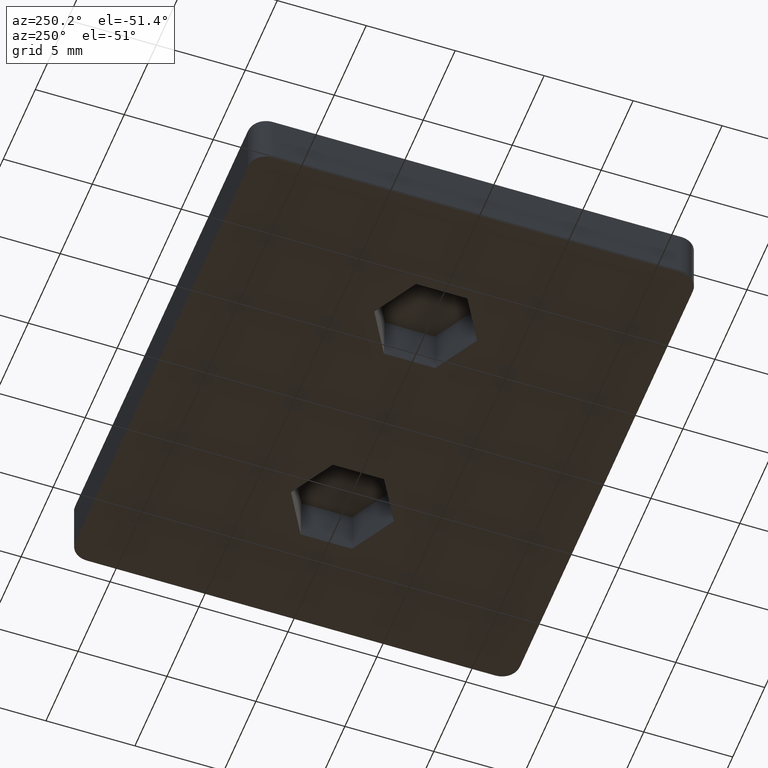
[diagram: clean part render]
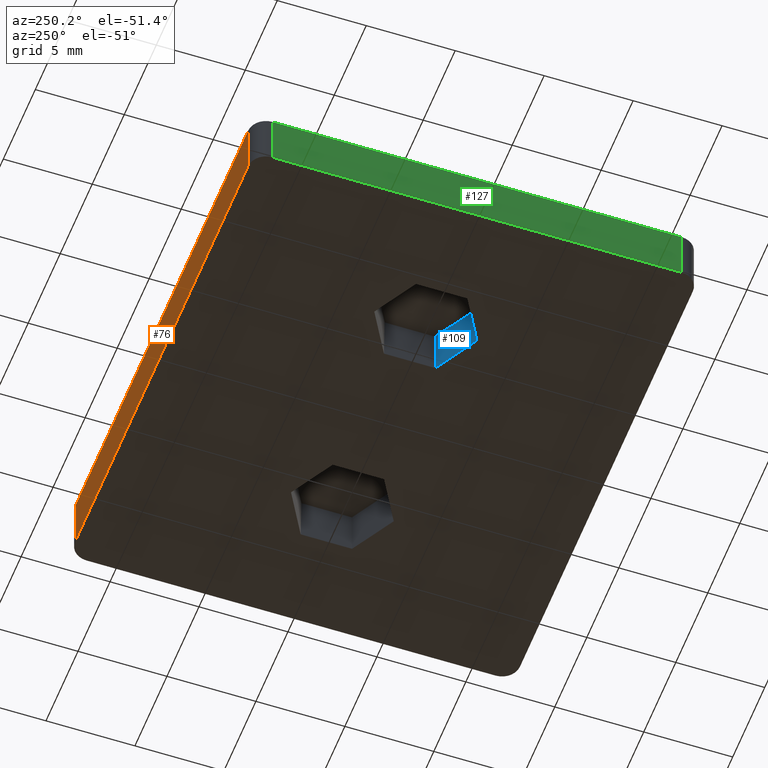
[diagram: same view with three faces highlighted in distinct colors, each labeled with its STEP entity id]
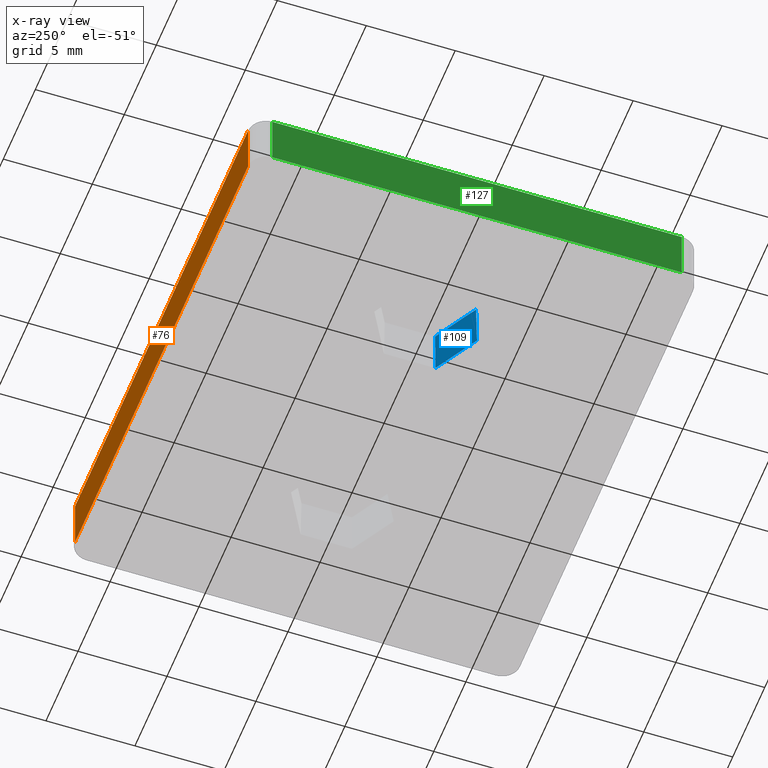
[diagram: x-ray of the same camera — body ghosted, the three highlighted faces saturated]
A machine part, auxiliary view with three faces highlighted in distinct colors.
The next image is the same camera in x-ray (body ghosted, the three faces saturated) — at least one of them is partly hidden behind the body in this view.
Their STEP definitions:

[orange] entity #76 — the highlighted planar face has unit normal (0, -1, 0).
#76 = ADVANCED_FACE( '', ( #146 ), #147, .F. );
#146 = FACE_OUTER_BOUND( '', #279, .T. );
#147 = PLANE( '', #280 );
#279 = EDGE_LOOP( '', ( #444, #445, #446, #447 ) );
#280 = AXIS2_PLACEMENT_3D( '', #448, #449, #450 );
#444 = ORIENTED_EDGE( '', *, *, #920, .F. );
#445 = ORIENTED_EDGE( '', *, *, #921, .F. );
#446 = ORIENTED_EDGE( '', *, *, #922, .F. );
#447 = ORIENTED_EDGE( '', *, *, #896, .T. );
#448 = CARTESIAN_POINT( '', ( -25.5000000000000, 12.5000000000000, -1.46431667789534E-014 ) );
#449 = DIRECTION( '', ( 0.000000000000000, -1.00000000000000, 6.12303176911189E-017 ) );
#450 = DIRECTION( '', ( -1.00000000000000, 0.000000000000000, 0.000000000000000 ) );
#896 = EDGE_CURVE( '', #1059, #1057, #1060, .T. );
#920 = EDGE_CURVE( '', #1106, #1057, #1107, .T. );
#921 = EDGE_CURVE( '', #1108, #1106, #1109, .T. );
#922 = EDGE_CURVE( '', #1059, #1108, #1110, .T. );
#1057 = VERTEX_POINT( '', #1317 );
#1059 = VERTEX_POINT( '', #1319 );
#1060 = LINE( '', #1320, #1321 );
#1106 = VERTEX_POINT( '', #1384 );
#1107 = LINE( '', #1385, #1386 );
#1108 = VERTEX_POINT( '', #1387 );
#1109 = LINE( '', #1388, #1389 );
#1110 = LINE( '', #1390, #1391 );
#1317 = CARTESIAN_POINT( '', ( 13.5000000000000, 12.5000000000000, 2.99999999999997 ) );
#1319 = CARTESIAN_POINT( '', ( -13.5000000000000, 12.5000000000000, 2.99999999999998 ) );
#1320 = CARTESIAN_POINT( '', ( -25.5000000000000, 12.5000000000000, 2.99999999999999 ) );
#1321 = VECTOR( '', #1676, 1000.00000000000 );
#1384 = CARTESIAN_POINT( '', ( 13.5000000000000, 12.5000000000000, -2.85209545867679E-014 ) );
#1385 = CARTESIAN_POINT( '', ( 13.5000000000000, 12.5000000000000, -51.3812999910289 ) );
#1386 = VECTOR( '', #1712, 1000.00000000000 );
#1387 = CARTESIAN_POINT( '', ( -13.5000000000000, 12.5000000000000, -1.46431667789534E-014 ) );
#1388 = CARTESIAN_POINT( '', ( -25.5000000000000, 12.5000000000000, -1.46431667789534E-014 ) );
#1389 = VECTOR( '', #1713, 1000.00000000000 );
#1390 = CARTESIAN_POINT( '', ( -13.5000000000000, 12.5000000000000, 68.8641649900668 ) );
#1391 = VECTOR( '', #1714, 1000.00000000000 );
#1676 = DIRECTION( '', ( 1.00000000000000, 0.000000000000000, 0.000000000000000 ) );
#1712 = DIRECTION( '', ( 1.49519739311857E-016, 2.33178017899756E-016, 1.00000000000000 ) );
#1713 = DIRECTION( '', ( 1.00000000000000, 0.000000000000000, 0.000000000000000 ) );
#1714 = DIRECTION( '', ( 1.49519739311858E-016, -2.33178017899756E-016, -1.00000000000000 ) );

[blue] entity #109 — the highlighted planar face has unit normal (0.4999, -0.8659, 0.0175).
#109 = ADVANCED_FACE( '', ( #214 ), #215, .F. );
#214 = FACE_OUTER_BOUND( '', #347, .T. );
#215 = PLANE( '', #348 );
#347 = EDGE_LOOP( '', ( #700, #701, #702, #703 ) );
#348 = AXIS2_PLACEMENT_3D( '', #704, #705, #706 );
#700 = ORIENTED_EDGE( '', *, *, #937, .F. );
#701 = ORIENTED_EDGE( '', *, *, #1010, .F. );
#702 = ORIENTED_EDGE( '', *, *, #1002, .T. );
#703 = ORIENTED_EDGE( '', *, *, #1012, .T. );
#704 = CARTESIAN_POINT( '', ( -4.00000000000000, -1.44337567297406, -6.85051555290339E-015 ) );
#705 = DIRECTION( '', ( 0.499923847578196, -0.865893503920754, 0.0174524064372836 ) );
#706 = DIRECTION( '', ( 0.866025403784439, 0.500000000000000, -3.06058338817720E-017 ) );
#937 = EDGE_CURVE( '', #1132, #1134, #1135, .F. );
#1002 = EDGE_CURVE( '', #1242, #1243, #1244, .F. );
#1010 = EDGE_CURVE( '', #1242, #1132, #1256, .T. );
#1012 = EDGE_CURVE( '', #1243, #1134, #1259, .T. );
#1132 = VERTEX_POINT( '', #1424 );
#1134 = VERTEX_POINT( '', #1427 );
#1135 = LINE( '', #1428, #1429 );
#1242 = VERTEX_POINT( '', #1596 );
#1243 = VERTEX_POINT( '', #1597 );
#1244 = LINE( '', #1598, #1599 );
#1256 = LINE( '', #1618, #1619 );
#1259 = LINE( '', #1622, #1623 );
#1424 = CARTESIAN_POINT( '', ( -6.50000000000000, -2.88675134594813, -6.76213720189956E-015 ) );
#1427 = CARTESIAN_POINT( '', ( -4.00000000000000, -1.44337567297406, -6.85051555290339E-015 ) );
#1428 = CARTESIAN_POINT( '', ( -4.00000000000000, -1.44337567297406, -6.85051555290339E-015 ) );
#1429 = VECTOR( '', #1733, 1000.00000000000 );
#1596 = CARTESIAN_POINT( '', ( -6.50000000000000, -2.83434737648598, 2.59999999999999 ) );
#1597 = CARTESIAN_POINT( '', ( -4.04538316881337, -1.41717368824299, 2.59999999999999 ) );
#1598 = CARTESIAN_POINT( '', ( -4.02269158440668, -1.40407269587745, 2.59999999999999 ) );
#1599 = VECTOR( '', #1806, 1000.00000000000 );
#1618 = CARTESIAN_POINT( '', ( -6.50000000000000, -2.88616522848177, 0.0290799614642777 ) );
#1619 = VECTOR( '', #1814, 1000.00000000000 );
#1622 = CARTESIAN_POINT( '', ( -4.00000000000000, -1.44337567297406, -6.85051555290339E-015 ) );
#1623 = VECTOR( '', #1818, 1000.00000000000 );
#1733 = DIRECTION( '', ( -0.866025403784439, -0.500000000000000, 3.06151588455594E-017 ) );
#1806 = DIRECTION( '', ( -0.866025403784439, -0.500000000000000, 3.06151588455594E-017 ) );
#1814 = DIRECTION( '', ( 4.50785915155320E-018, -0.0201512801671580, -0.999796942337605 ) );
#1818 = DIRECTION( '', ( 0.0174515205435363, -0.0100756400835790, -0.999796942337605 ) );

[green] entity #127 — the highlighted planar face has unit normal (-1, -0, -0).
#127 = ADVANCED_FACE( '', ( #252 ), #253, .T. );
#252 = FACE_OUTER_BOUND( '', #385, .T. );
#253 = PLANE( '', #386 );
#385 = EDGE_LOOP( '', ( #819, #820, #821, #822 ) );
#386 = AXIS2_PLACEMENT_3D( '', #823, #824, #825 );
#819 = ORIENTED_EDGE( '', *, *, #949, .F. );
#820 = ORIENTED_EDGE( '', *, *, #999, .F. );
#821 = ORIENTED_EDGE( '', *, *, #898, .T. );
#822 = ORIENTED_EDGE( '', *, *, #1014, .T. );
#823 = CARTESIAN_POINT( '', ( -14.5000000000000, -11.5000000000000, 68.8641649900668 ) );
#824 = DIRECTION( '', ( -1.00000000000000, -9.15514113915832E-033, -1.49519739311858E-016 ) );
#825 = DIRECTION( '', ( 2.57095753104688E-032, 1.00000000000000, -2.33178017899756E-016 ) );
#898 = EDGE_CURVE( '', #1063, #1061, #1064, .T. );
#949 = EDGE_CURVE( '', #1155, #1157, #1158, .T. );
#999 = EDGE_CURVE( '', #1063, #1155, #1239, .T. );
#1014 = EDGE_CURVE( '', #1061, #1157, #1262, .T. );
#1061 = VERTEX_POINT( '', #1322 );
#1063 = VERTEX_POINT( '', #1324 );
#1064 = LINE( '', #1325, #1326 );
#1155 = VERTEX_POINT( '', #1459 );
#1157 = VERTEX_POINT( '', #1461 );
#1158 = LINE( '', #1462, #1463 );
#1239 = LINE( '', #1590, #1591 );
#1262 = LINE( '', #1626, #1627 );
#1322 = CARTESIAN_POINT( '', ( -14.5000000000000, 11.5000000000000, 2.99999999999999 ) );
#1324 = CARTESIAN_POINT( '', ( -14.5000000000000, -11.5000000000000, 2.99999999999999 ) );
#1325 = CARTESIAN_POINT( '', ( -14.5000000000000, -8.48992642681068E-015, 2.99999999999999 ) );
#1326 = VECTOR( '', #1680, 1000.00000000000 );
#1459 = CARTESIAN_POINT( '', ( -14.5000000000000, -11.5000000000000, -1.31736391543666E-014 ) );
#1461 = CARTESIAN_POINT( '', ( -14.5000000000000, 11.5000000000000, -1.45819364612623E-014 ) );
#1462 = CARTESIAN_POINT( '', ( -14.5000000000000, -8.67361737988404E-015, -1.38777878078145E-014 ) );
#1463 = VECTOR( '', #1747, 1000.00000000000 );
#1590 = CARTESIAN_POINT( '', ( -14.5000000000000, -11.5000000000000, 68.8641649900668 ) );
#1591 = VECTOR( '', #1803, 1000.00000000000 );
#1626 = CARTESIAN_POINT( '', ( -14.5000000000000, 11.5000000000000, 68.8641649900668 ) );
#1627 = VECTOR( '', #1822, 1000.00000000000 );
#1680 = DIRECTION( '', ( 0.000000000000000, 1.00000000000000, -6.12303176911189E-017 ) );
#1747 = DIRECTION( '', ( 0.000000000000000, 1.00000000000000, -6.12303176911189E-017 ) );
#1803 = DIRECTION( '', ( 1.49519739311858E-016, -2.33178017899756E-016, -1.00000000000000 ) );
#1822 = DIRECTION( '', ( 1.49519739311858E-016, -2.33178017899756E-016, -1.00000000000000 ) );